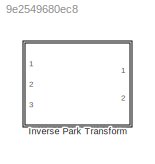
MODEL slx_9e2549680ec8
KIND model
CONFIG AbsTol = auto
CONFIG FixedStep = auto
CONFIG MaxStep = auto
CONFIG MinStep = auto
CONFIG RelTol = 1e-3
CONFIG SampleTimeConstraint = Unconstrained
CONFIG Solver = VariableStepAuto
CONFIG SolverMode = Auto
CONFIG SolverName = VariableStepAuto
CONFIG StartTime = 0.0
CONFIG StopTime = 10.0
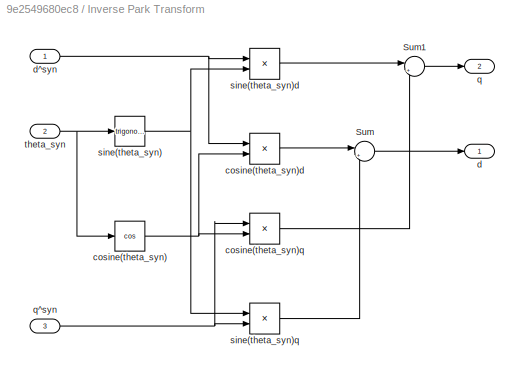
BLOCK [SubSystem] Inverse Park Transform
  Ports = [3, 2]
  RequestExecContextInheritance = off
  Variant = off
BLOCK [Sum] Inverse Park Transform/Sum
  IconShape = round
  InputSameDT = off
  Inputs = |+-
  OutDataTypeStr = Inherit: Inherit via internal rule
  Ports = [2, 1]
  SaturateOnIntegerOverflow = off
BLOCK [Sum] Inverse Park Transform/Sum1
  IconShape = round
  InputSameDT = off
  Inputs = |++
  OutDataTypeStr = Inherit: Inherit via internal rule
  Ports = [2, 1]
  SaturateOnIntegerOverflow = off
BLOCK [Trigonometry] Inverse Park Transform/cosine(theta_syn)
  Operator = cos
  Ports = [1, 1]
BLOCK [Product] Inverse Park Transform/cosine(theta_syn)d
  InputSameDT = off
  OutDataTypeStr = Inherit: Inherit via internal rule
  Ports = [2, 1]
  RndMeth = Floor
  SaturateOnIntegerOverflow = off
BLOCK [Product] Inverse Park Transform/cosine(theta_syn)q
  InputSameDT = off
  OutDataTypeStr = Inherit: Inherit via internal rule
  Ports = [2, 1]
  RndMeth = Floor
  SaturateOnIntegerOverflow = off
BLOCK [Outport] Inverse Park Transform/d
  IconDisplay = Port number
BLOCK [Inport] Inverse Park Transform/d^syn
  IconDisplay = Port number
BLOCK [Outport] Inverse Park Transform/q
  IconDisplay = Port number
  Port = 2
BLOCK [Inport] Inverse Park Transform/q^syn
  IconDisplay = Port number
  Port = 3
BLOCK [Trigonometry] Inverse Park Transform/sine(theta_syn)
  Ports = [1, 1]
BLOCK [Product] Inverse Park Transform/sine(theta_syn)d
  InputSameDT = off
  OutDataTypeStr = Inherit: Inherit via internal rule
  Ports = [2, 1]
  RndMeth = Floor
  SaturateOnIntegerOverflow = off
BLOCK [Product] Inverse Park Transform/sine(theta_syn)q
  InputSameDT = off
  OutDataTypeStr = Inherit: Inherit via internal rule
  Ports = [2, 1]
  RndMeth = Floor
  SaturateOnIntegerOverflow = off
BLOCK [Inport] Inverse Park Transform/theta_syn
  IconDisplay = Port number
  Port = 2
LINE Inverse Park Transform/Sum1:1 -> Inverse Park Transform/q:1
LINE Inverse Park Transform/Sum:1 -> Inverse Park Transform/d:1
NET Inverse Park Transform/cosine(theta_syn):1 -> Inverse Park Transform/cosine(theta_syn)d:2, Inverse Park Transform/cosine(theta_syn)q:2
LINE Inverse Park Transform/cosine(theta_syn)d:1 -> Inverse Park Transform/Sum:1
LINE Inverse Park Transform/cosine(theta_syn)q:1 -> Inverse Park Transform/Sum1:2
NET Inverse Park Transform/d^syn:1 -> Inverse Park Transform/cosine(theta_syn)d:1, Inverse Park Transform/sine(theta_syn)d:1
NET Inverse Park Transform/q^syn:1 -> Inverse Park Transform/cosine(theta_syn)q:1, Inverse Park Transform/sine(theta_syn)q:2
NET Inverse Park Transform/sine(theta_syn):1 -> Inverse Park Transform/sine(theta_syn)d:2, Inverse Park Transform/sine(theta_syn)q:1
LINE Inverse Park Transform/sine(theta_syn)d:1 -> Inverse Park Transform/Sum1:1
LINE Inverse Park Transform/sine(theta_syn)q:1 -> Inverse Park Transform/Sum:2
NET Inverse Park Transform/theta_syn:1 -> Inverse Park Transform/cosine(theta_syn):1, Inverse Park Transform/sine(theta_syn):1
note: NET lines group one-source signal fan-out (src -> all destinations, sorted); 1:1 wires keep LINE
